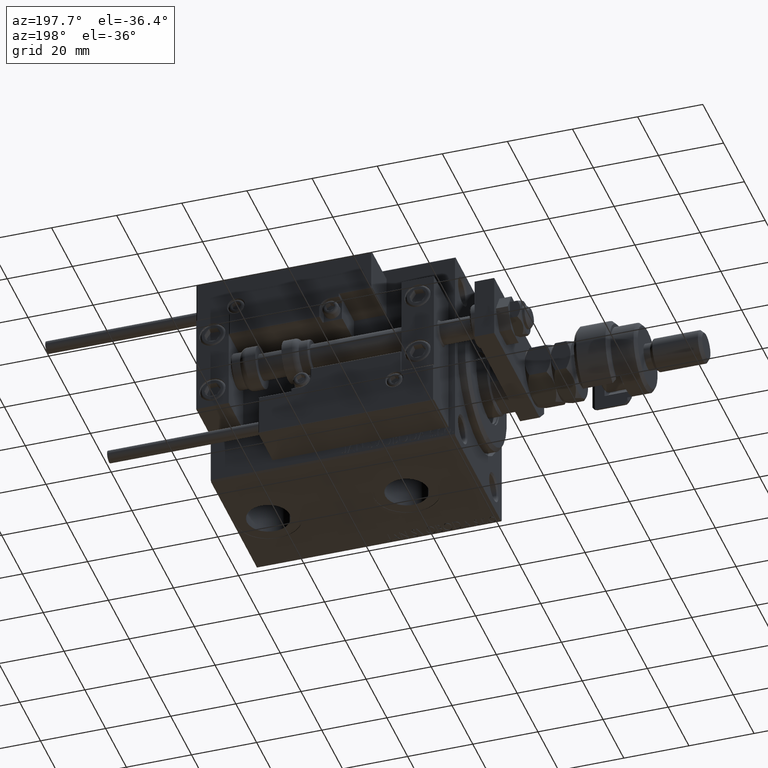
[diagram: clean part render]
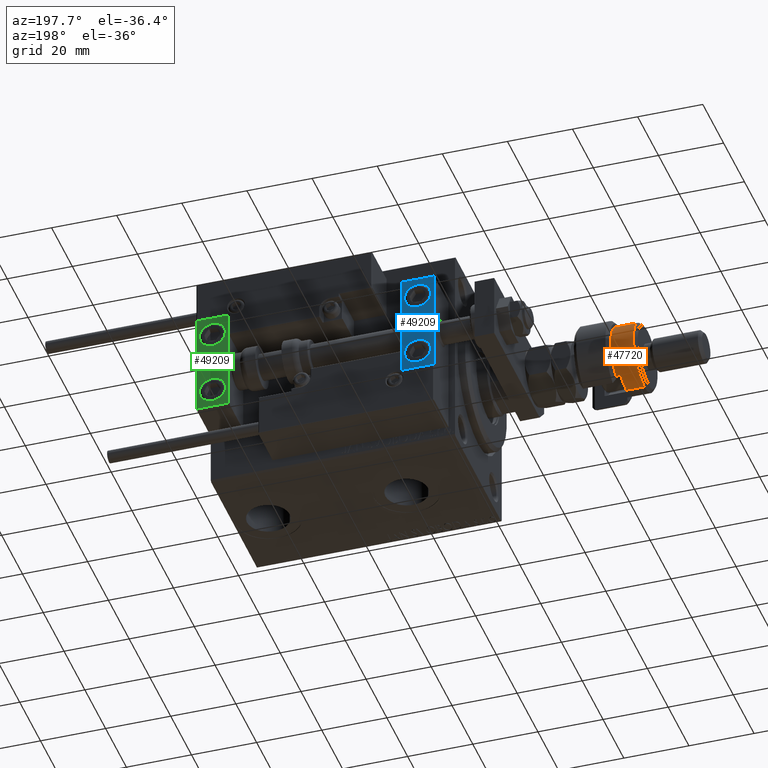
[diagram: same view with three faces highlighted in distinct colors, each labeled with its STEP entity id]
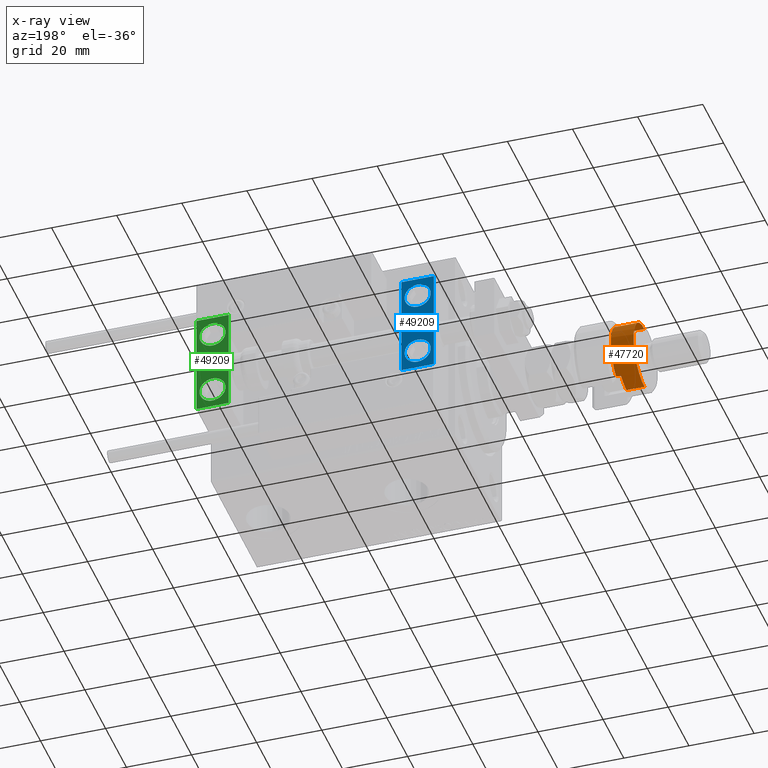
[diagram: x-ray of the same camera — body ghosted, the three highlighted faces saturated]
A machine part, auxiliary view with three faces highlighted in distinct colors.
The next image is the same camera in x-ray (body ghosted, the three faces saturated) — at least one of them is partly hidden behind the body in this view.
Their STEP definitions:

[orange] entity #47720 — the highlighted cylindrical surface (edge-blend (fillet) strip) has radius 10.5 mm, axis along (1, 0, -0).
#502 = EDGE_CURVE ( 'NONE', #50437, #23259, #728, .T. ) ;
#728 = LINE ( 'NONE', #17784, #47205 ) ;
#1740 = CARTESIAN_POINT ( 'NONE',  ( 10.50000000000000000, 1.285879139104720831E-15, 17.99999999999999645 ) ) ;
#2994 = CIRCLE ( 'NONE', #34292, 10.50000000000000000 ) ;
#3178 = CARTESIAN_POINT ( 'NONE',  ( 0.000000000000000000, 0.000000000000000000, 12.50000000000000000 ) ) ;
#4000 = CARTESIAN_POINT ( 'NONE',  ( -10.50000000000000000, 0.000000000000000000, 12.50000000000000000 ) ) ;
#6777 = DIRECTION ( 'NONE',  ( 0.000000000000000000, 0.000000000000000000, 1.000000000000000000 ) ) ;
#7370 = CYLINDRICAL_SURFACE ( 'NONE', #21710, 10.50000000000000000 ) ;
#7630 = VECTOR ( 'NONE', #8538, 1000.000000000000000 ) ;
#8538 = DIRECTION ( 'NONE',  ( -0.000000000000000000, -0.000000000000000000, -1.000000000000000000 ) ) ;
#10704 = DIRECTION ( 'NONE',  ( 1.000000000000000000, 0.000000000000000000, 0.000000000000000000 ) ) ;
#10874 = CIRCLE ( 'NONE', #26966, 10.50000000000000000 ) ;
#11579 = DIRECTION ( 'NONE',  ( -1.000000000000000000, 0.000000000000000000, 0.000000000000000000 ) ) ;
#13460 = EDGE_CURVE ( 'NONE', #44682, #50437, #10874, .T. ) ;
#14233 = ORIENTED_EDGE ( 'NONE', *, *, #18187, .F. ) ;
#14357 = LINE ( 'NONE', #53558, #51126 ) ;
#14726 = EDGE_CURVE ( 'NONE', #30383, #46909, #14357, .T. ) ;
#16963 = AXIS2_PLACEMENT_3D ( 'NONE', #50086, #37189, #46435 ) ;
#17150 = VERTEX_POINT ( 'NONE', #1740 ) ;
#17784 = CARTESIAN_POINT ( 'NONE',  ( -8.944271909999159220, 5.500000000000000000, 19.00000000000000000 ) ) ;
#18187 = EDGE_CURVE ( 'NONE', #46909, #23259, #2994, .T. ) ;
#19503 = ORIENTED_EDGE ( 'NONE', *, *, #24477, .T. ) ;
#19682 = CIRCLE ( 'NONE', #16963, 10.50000000000000000 ) ;
#20452 = ORIENTED_EDGE ( 'NONE', *, *, #38168, .T. ) ;
#21532 = ORIENTED_EDGE ( 'NONE', *, *, #14726, .F. ) ;
#21710 = AXIS2_PLACEMENT_3D ( 'NONE', #40971, #32853, #33143 ) ;
#22484 = DIRECTION ( 'NONE',  ( -0.000000000000000000, -0.000000000000000000, -1.000000000000000000 ) ) ;
#22797 = EDGE_LOOP ( 'NONE', ( #20452, #19503, #28128, #39476, #14233, #21532 ) ) ;
#23259 = VERTEX_POINT ( 'NONE', #50329 ) ;
#23581 = CARTESIAN_POINT ( 'NONE',  ( 0.000000000000000000, 0.000000000000000000, 11.00000000000000000 ) ) ;
#23819 = CARTESIAN_POINT ( 'NONE',  ( -10.50000000000000000, 0.000000000000000000, 17.99999999999999645 ) ) ;
#24323 = CARTESIAN_POINT ( 'NONE',  ( -8.944271909999159220, 5.500000000000000000, 11.00000000000000000 ) ) ;
#24477 = EDGE_CURVE ( 'NONE', #17150, #44682, #33742, .T. ) ;
#26966 = AXIS2_PLACEMENT_3D ( 'NONE', #23581, #6777, #10704 ) ;
#28128 = ORIENTED_EDGE ( 'NONE', *, *, #13460, .T. ) ;
#28403 = DIRECTION ( 'NONE',  ( 0.000000000000000000, 0.000000000000000000, -1.000000000000000000 ) ) ;
#30383 = VERTEX_POINT ( 'NONE', #23819 ) ;
#32853 = DIRECTION ( 'NONE',  ( -0.000000000000000000, -0.000000000000000000, -1.000000000000000000 ) ) ;
#33143 = DIRECTION ( 'NONE',  ( -1.000000000000000000, 0.000000000000000000, 0.000000000000000000 ) ) ;
#33742 = LINE ( 'NONE', #55033, #7630 ) ;
#34292 = AXIS2_PLACEMENT_3D ( 'NONE', #3178, #28403, #11579 ) ;
#34879 = DIRECTION ( 'NONE',  ( 0.000000000000000000, 0.000000000000000000, 1.000000000000000000 ) ) ;
#37189 = DIRECTION ( 'NONE',  ( 0.000000000000000000, 0.000000000000000000, -1.000000000000000000 ) ) ;
#38168 = EDGE_CURVE ( 'NONE', #30383, #17150, #19682, .T. ) ;
#39476 = ORIENTED_EDGE ( 'NONE', *, *, #502, .T. ) ;
#40971 = CARTESIAN_POINT ( 'NONE',  ( 0.000000000000000000, 0.000000000000000000, 19.00000000000000000 ) ) ;
#44682 = VERTEX_POINT ( 'NONE', #49687 ) ;
#46435 = DIRECTION ( 'NONE',  ( 1.000000000000000000, 0.000000000000000000, 0.000000000000000000 ) ) ;
#46909 = VERTEX_POINT ( 'NONE', #4000 ) ;
#47205 = VECTOR ( 'NONE', #34879, 1000.000000000000000 ) ;
#47720 = ADVANCED_FACE ( 'NONE', ( #49659 ), #7370, .T. ) ;
#49659 = FACE_OUTER_BOUND ( 'NONE', #22797, .T. ) ;
#49687 = CARTESIAN_POINT ( 'NONE',  ( 10.50000000000000000, 1.285879139104720831E-15, 11.00000000000000000 ) ) ;
#50086 = CARTESIAN_POINT ( 'NONE',  ( 0.000000000000000000, 0.000000000000000000, 17.99999999999999645 ) ) ;
#50329 = CARTESIAN_POINT ( 'NONE',  ( -8.944271909999159220, 5.500000000000000000, 12.50000000000000000 ) ) ;
#50437 = VERTEX_POINT ( 'NONE', #24323 ) ;
#51126 = VECTOR ( 'NONE', #22484, 1000.000000000000000 ) ;
#53558 = CARTESIAN_POINT ( 'NONE',  ( -10.50000000000000000, 0.000000000000000000, 19.00000000000000000 ) ) ;
#55033 = CARTESIAN_POINT ( 'NONE',  ( 10.50000000000000000, 1.285879139104720831E-15, 19.00000000000000000 ) ) ;

[blue] entity #49209 — the highlighted planar face has unit normal (-0, 1, 0).
#2221 = DIRECTION ( 'NONE',  ( 0.000000000000000000, 0.000000000000000000, -1.000000000000000000 ) ) ;
#4498 = VECTOR ( 'NONE', #2221, 1000.000000000000000 ) ;
#4661 = ORIENTED_EDGE ( 'NONE', *, *, #42473, .T. ) ;
#5386 = ORIENTED_EDGE ( 'NONE', *, *, #7133, .F. ) ;
#5917 = PLANE ( 'NONE',  #50433 ) ;
#6867 = DIRECTION ( 'NONE',  ( 0.000000000000000000, 0.000000000000000000, 1.000000000000000000 ) ) ;
#7133 = EDGE_CURVE ( 'NONE', #29516, #35239, #35756, .T. ) ;
#8421 = CARTESIAN_POINT ( 'NONE',  ( 0.000000000000000000, 7.000000000000000000, 15.99999999999999289 ) ) ;
#8787 = ORIENTED_EDGE ( 'NONE', *, *, #38686, .T. ) ;
#8868 = VERTEX_POINT ( 'NONE', #8421 ) ;
#9865 = AXIS2_PLACEMENT_3D ( 'NONE', #36239, #19142, #18320 ) ;
#10603 = DIRECTION ( 'NONE',  ( 0.000000000000000000, 0.000000000000000000, 1.000000000000000000 ) ) ;
#11598 = AXIS2_PLACEMENT_3D ( 'NONE', #52898, #36088, #10603 ) ;
#11635 = VERTEX_POINT ( 'NONE', #30745 ) ;
#11703 = CARTESIAN_POINT ( 'NONE',  ( 5.000000000000000888, 7.000000000000000888, 14.00000000000000178 ) ) ;
#12841 = EDGE_CURVE ( 'NONE', #48284, #49816, #32344, .T. ) ;
#13644 = VECTOR ( 'NONE', #23616, 1000.000000000000000 ) ;
#14822 = DIRECTION ( 'NONE',  ( 0.000000000000000000, 0.000000000000000000, -1.000000000000000000 ) ) ;
#15842 = EDGE_CURVE ( 'NONE', #27072, #11635, #35950, .T. ) ;
#18320 = DIRECTION ( 'NONE',  ( 0.000000000000000000, 0.000000000000000000, 1.000000000000000000 ) ) ;
#18799 = FACE_BOUND ( 'NONE', #31269, .T. ) ;
#19142 = DIRECTION ( 'NONE',  ( 1.848892746611746419E-32, -1.000000000000000000, 6.616381192988677562E-17 ) ) ;
#22042 = AXIS2_PLACEMENT_3D ( 'NONE', #36276, #49705, #6867 ) ;
#23616 = DIRECTION ( 'NONE',  ( -1.000000000000000000, -0.000000000000000000, -0.000000000000000000 ) ) ;
#23794 = DIRECTION ( 'NONE',  ( 1.848892746611746419E-32, -1.000000000000000000, 6.616381192988677562E-17 ) ) ;
#24052 = CARTESIAN_POINT ( 'NONE',  ( 10.00000000000000000, 7.000000000000000000, 15.99999999999999289 ) ) ;
#24184 = CARTESIAN_POINT ( 'NONE',  ( 5.000000000000001776, 7.000000000000000888, 6.000000000000000888 ) ) ;
#27072 = VERTEX_POINT ( 'NONE', #47295 ) ;
#27468 = EDGE_CURVE ( 'NONE', #35239, #29516, #42634, .T. ) ;
#29516 = VERTEX_POINT ( 'NONE', #54051 ) ;
#30745 = CARTESIAN_POINT ( 'NONE',  ( 0.000000000000000000, 7.000000000000000000, -16.00000000000000711 ) ) ;
#31095 = CARTESIAN_POINT ( 'NONE',  ( 0.000000000000000000, 7.000000000000000000, 15.99999999999999289 ) ) ;
#31113 = EDGE_CURVE ( 'NONE', #8868, #11635, #52934, .T. ) ;
#31269 = EDGE_LOOP ( 'NONE', ( #5386, #48820 ) ) ;
#31704 = FACE_BOUND ( 'NONE', #51351, .T. ) ;
#31934 = CARTESIAN_POINT ( 'NONE',  ( 5.000000000000000888, 7.000000000000000888, 10.00000000000000178 ) ) ;
#32106 = ORIENTED_EDGE ( 'NONE', *, *, #15842, .T. ) ;
#32344 = CIRCLE ( 'NONE', #44858, 4.000000000000000000 ) ;
#32454 = LINE ( 'NONE', #24052, #4498 ) ;
#35239 = VERTEX_POINT ( 'NONE', #46049 ) ;
#35756 = CIRCLE ( 'NONE', #11598, 4.000000000000000888 ) ;
#35950 = LINE ( 'NONE', #49648, #13644 ) ;
#36088 = DIRECTION ( 'NONE',  ( 0.000000000000000000, 1.000000000000000000, -6.065466699219605527E-17 ) ) ;
#36239 = CARTESIAN_POINT ( 'NONE',  ( 5.000000000000000888, 7.000000000000000888, 10.00000000000000178 ) ) ;
#36276 = CARTESIAN_POINT ( 'NONE',  ( 5.000000000000000888, 6.999999999999999112, -10.00000000000000178 ) ) ;
#37339 = ORIENTED_EDGE ( 'NONE', *, *, #31113, .F. ) ;
#37526 = VERTEX_POINT ( 'NONE', #41316 ) ;
#38686 = EDGE_CURVE ( 'NONE', #49816, #48284, #50994, .T. ) ;
#39661 = VECTOR ( 'NONE', #44144, 1000.000000000000000 ) ;
#40828 = VECTOR ( 'NONE', #14822, 1000.000000000000000 ) ;
#40854 = DIRECTION ( 'NONE',  ( 0.000000000000000000, 0.000000000000000000, 1.000000000000000000 ) ) ;
#41180 = DIRECTION ( 'NONE',  ( 0.000000000000000000, -0.000000000000000000, 1.000000000000000000 ) ) ;
#41316 = CARTESIAN_POINT ( 'NONE',  ( 10.00000000000000000, 7.000000000000000000, 15.99999999999999289 ) ) ;
#42473 = EDGE_CURVE ( 'NONE', #37526, #27072, #32454, .T. ) ;
#42634 = CIRCLE ( 'NONE', #22042, 4.000000000000000888 ) ;
#44144 = DIRECTION ( 'NONE',  ( -1.000000000000000000, -0.000000000000000000, -0.000000000000000000 ) ) ;
#44845 = CARTESIAN_POINT ( 'NONE',  ( 10.00000000000000000, 7.000000000000000000, 15.99999999999999289 ) ) ;
#44858 = AXIS2_PLACEMENT_3D ( 'NONE', #31934, #23794, #40854 ) ;
#46049 = CARTESIAN_POINT ( 'NONE',  ( 5.000000000000001776, 6.999999999999999112, -14.00000000000000178 ) ) ;
#47295 = CARTESIAN_POINT ( 'NONE',  ( 10.00000000000000000, 7.000000000000000000, -16.00000000000000711 ) ) ;
#47786 = LINE ( 'NONE', #48623, #39661 ) ;
#48284 = VERTEX_POINT ( 'NONE', #11703 ) ;
#48421 = EDGE_CURVE ( 'NONE', #37526, #8868, #47786, .T. ) ;
#48531 = ORIENTED_EDGE ( 'NONE', *, *, #48421, .F. ) ;
#48623 = CARTESIAN_POINT ( 'NONE',  ( 10.00000000000000000, 7.000000000000000000, 15.99999999999999289 ) ) ;
#48820 = ORIENTED_EDGE ( 'NONE', *, *, #27468, .F. ) ;
#49209 = ADVANCED_FACE ( 'NONE', ( #54077, #18799, #31704 ), #5917, .T. ) ;
#49313 = DIRECTION ( 'NONE',  ( -0.000000000000000000, 1.000000000000000000, 0.000000000000000000 ) ) ;
#49648 = CARTESIAN_POINT ( 'NONE',  ( 10.00000000000000000, 7.000000000000000000, -16.00000000000000711 ) ) ;
#49705 = DIRECTION ( 'NONE',  ( 0.000000000000000000, 1.000000000000000000, -6.065466699219605527E-17 ) ) ;
#49816 = VERTEX_POINT ( 'NONE', #24184 ) ;
#50164 = ORIENTED_EDGE ( 'NONE', *, *, #12841, .T. ) ;
#50433 = AXIS2_PLACEMENT_3D ( 'NONE', #44845, #49313, #41180 ) ;
#50903 = EDGE_LOOP ( 'NONE', ( #37339, #48531, #4661, #32106 ) ) ;
#50994 = CIRCLE ( 'NONE', #9865, 4.000000000000000000 ) ;
#51351 = EDGE_LOOP ( 'NONE', ( #50164, #8787 ) ) ;
#52898 = CARTESIAN_POINT ( 'NONE',  ( 5.000000000000000888, 6.999999999999999112, -10.00000000000000178 ) ) ;
#52934 = LINE ( 'NONE', #31095, #40828 ) ;
#54051 = CARTESIAN_POINT ( 'NONE',  ( 5.000000000000000888, 6.999999999999999112, -6.000000000000000888 ) ) ;
#54077 = FACE_OUTER_BOUND ( 'NONE', #50903, .T. ) ;

[green] entity #49209 — the highlighted planar face has unit normal (0, 1, 0).
#2221 = DIRECTION ( 'NONE',  ( 0.000000000000000000, 0.000000000000000000, -1.000000000000000000 ) ) ;
#4498 = VECTOR ( 'NONE', #2221, 1000.000000000000000 ) ;
#4661 = ORIENTED_EDGE ( 'NONE', *, *, #42473, .T. ) ;
#5386 = ORIENTED_EDGE ( 'NONE', *, *, #7133, .F. ) ;
#5917 = PLANE ( 'NONE',  #50433 ) ;
#6867 = DIRECTION ( 'NONE',  ( 0.000000000000000000, 0.000000000000000000, 1.000000000000000000 ) ) ;
#7133 = EDGE_CURVE ( 'NONE', #29516, #35239, #35756, .T. ) ;
#8421 = CARTESIAN_POINT ( 'NONE',  ( 0.000000000000000000, 7.000000000000000000, 15.99999999999999289 ) ) ;
#8787 = ORIENTED_EDGE ( 'NONE', *, *, #38686, .T. ) ;
#8868 = VERTEX_POINT ( 'NONE', #8421 ) ;
#9865 = AXIS2_PLACEMENT_3D ( 'NONE', #36239, #19142, #18320 ) ;
#10603 = DIRECTION ( 'NONE',  ( 0.000000000000000000, 0.000000000000000000, 1.000000000000000000 ) ) ;
#11598 = AXIS2_PLACEMENT_3D ( 'NONE', #52898, #36088, #10603 ) ;
#11635 = VERTEX_POINT ( 'NONE', #30745 ) ;
#11703 = CARTESIAN_POINT ( 'NONE',  ( 5.000000000000000888, 7.000000000000000888, 14.00000000000000178 ) ) ;
#12841 = EDGE_CURVE ( 'NONE', #48284, #49816, #32344, .T. ) ;
#13644 = VECTOR ( 'NONE', #23616, 1000.000000000000000 ) ;
#14822 = DIRECTION ( 'NONE',  ( 0.000000000000000000, 0.000000000000000000, -1.000000000000000000 ) ) ;
#15842 = EDGE_CURVE ( 'NONE', #27072, #11635, #35950, .T. ) ;
#18320 = DIRECTION ( 'NONE',  ( 0.000000000000000000, 0.000000000000000000, 1.000000000000000000 ) ) ;
#18799 = FACE_BOUND ( 'NONE', #31269, .T. ) ;
#19142 = DIRECTION ( 'NONE',  ( 1.848892746611746419E-32, -1.000000000000000000, 6.616381192988677562E-17 ) ) ;
#22042 = AXIS2_PLACEMENT_3D ( 'NONE', #36276, #49705, #6867 ) ;
#23616 = DIRECTION ( 'NONE',  ( -1.000000000000000000, -0.000000000000000000, -0.000000000000000000 ) ) ;
#23794 = DIRECTION ( 'NONE',  ( 1.848892746611746419E-32, -1.000000000000000000, 6.616381192988677562E-17 ) ) ;
#24052 = CARTESIAN_POINT ( 'NONE',  ( 10.00000000000000000, 7.000000000000000000, 15.99999999999999289 ) ) ;
#24184 = CARTESIAN_POINT ( 'NONE',  ( 5.000000000000001776, 7.000000000000000888, 6.000000000000000888 ) ) ;
#27072 = VERTEX_POINT ( 'NONE', #47295 ) ;
#27468 = EDGE_CURVE ( 'NONE', #35239, #29516, #42634, .T. ) ;
#29516 = VERTEX_POINT ( 'NONE', #54051 ) ;
#30745 = CARTESIAN_POINT ( 'NONE',  ( 0.000000000000000000, 7.000000000000000000, -16.00000000000000711 ) ) ;
#31095 = CARTESIAN_POINT ( 'NONE',  ( 0.000000000000000000, 7.000000000000000000, 15.99999999999999289 ) ) ;
#31113 = EDGE_CURVE ( 'NONE', #8868, #11635, #52934, .T. ) ;
#31269 = EDGE_LOOP ( 'NONE', ( #5386, #48820 ) ) ;
#31704 = FACE_BOUND ( 'NONE', #51351, .T. ) ;
#31934 = CARTESIAN_POINT ( 'NONE',  ( 5.000000000000000888, 7.000000000000000888, 10.00000000000000178 ) ) ;
#32106 = ORIENTED_EDGE ( 'NONE', *, *, #15842, .T. ) ;
#32344 = CIRCLE ( 'NONE', #44858, 4.000000000000000000 ) ;
#32454 = LINE ( 'NONE', #24052, #4498 ) ;
#35239 = VERTEX_POINT ( 'NONE', #46049 ) ;
#35756 = CIRCLE ( 'NONE', #11598, 4.000000000000000888 ) ;
#35950 = LINE ( 'NONE', #49648, #13644 ) ;
#36088 = DIRECTION ( 'NONE',  ( 0.000000000000000000, 1.000000000000000000, -6.065466699219605527E-17 ) ) ;
#36239 = CARTESIAN_POINT ( 'NONE',  ( 5.000000000000000888, 7.000000000000000888, 10.00000000000000178 ) ) ;
#36276 = CARTESIAN_POINT ( 'NONE',  ( 5.000000000000000888, 6.999999999999999112, -10.00000000000000178 ) ) ;
#37339 = ORIENTED_EDGE ( 'NONE', *, *, #31113, .F. ) ;
#37526 = VERTEX_POINT ( 'NONE', #41316 ) ;
#38686 = EDGE_CURVE ( 'NONE', #49816, #48284, #50994, .T. ) ;
#39661 = VECTOR ( 'NONE', #44144, 1000.000000000000000 ) ;
#40828 = VECTOR ( 'NONE', #14822, 1000.000000000000000 ) ;
#40854 = DIRECTION ( 'NONE',  ( 0.000000000000000000, 0.000000000000000000, 1.000000000000000000 ) ) ;
#41180 = DIRECTION ( 'NONE',  ( 0.000000000000000000, -0.000000000000000000, 1.000000000000000000 ) ) ;
#41316 = CARTESIAN_POINT ( 'NONE',  ( 10.00000000000000000, 7.000000000000000000, 15.99999999999999289 ) ) ;
#42473 = EDGE_CURVE ( 'NONE', #37526, #27072, #32454, .T. ) ;
#42634 = CIRCLE ( 'NONE', #22042, 4.000000000000000888 ) ;
#44144 = DIRECTION ( 'NONE',  ( -1.000000000000000000, -0.000000000000000000, -0.000000000000000000 ) ) ;
#44845 = CARTESIAN_POINT ( 'NONE',  ( 10.00000000000000000, 7.000000000000000000, 15.99999999999999289 ) ) ;
#44858 = AXIS2_PLACEMENT_3D ( 'NONE', #31934, #23794, #40854 ) ;
#46049 = CARTESIAN_POINT ( 'NONE',  ( 5.000000000000001776, 6.999999999999999112, -14.00000000000000178 ) ) ;
#47295 = CARTESIAN_POINT ( 'NONE',  ( 10.00000000000000000, 7.000000000000000000, -16.00000000000000711 ) ) ;
#47786 = LINE ( 'NONE', #48623, #39661 ) ;
#48284 = VERTEX_POINT ( 'NONE', #11703 ) ;
#48421 = EDGE_CURVE ( 'NONE', #37526, #8868, #47786, .T. ) ;
#48531 = ORIENTED_EDGE ( 'NONE', *, *, #48421, .F. ) ;
#48623 = CARTESIAN_POINT ( 'NONE',  ( 10.00000000000000000, 7.000000000000000000, 15.99999999999999289 ) ) ;
#48820 = ORIENTED_EDGE ( 'NONE', *, *, #27468, .F. ) ;
#49209 = ADVANCED_FACE ( 'NONE', ( #54077, #18799, #31704 ), #5917, .T. ) ;
#49313 = DIRECTION ( 'NONE',  ( -0.000000000000000000, 1.000000000000000000, 0.000000000000000000 ) ) ;
#49648 = CARTESIAN_POINT ( 'NONE',  ( 10.00000000000000000, 7.000000000000000000, -16.00000000000000711 ) ) ;
#49705 = DIRECTION ( 'NONE',  ( 0.000000000000000000, 1.000000000000000000, -6.065466699219605527E-17 ) ) ;
#49816 = VERTEX_POINT ( 'NONE', #24184 ) ;
#50164 = ORIENTED_EDGE ( 'NONE', *, *, #12841, .T. ) ;
#50433 = AXIS2_PLACEMENT_3D ( 'NONE', #44845, #49313, #41180 ) ;
#50903 = EDGE_LOOP ( 'NONE', ( #37339, #48531, #4661, #32106 ) ) ;
#50994 = CIRCLE ( 'NONE', #9865, 4.000000000000000000 ) ;
#51351 = EDGE_LOOP ( 'NONE', ( #50164, #8787 ) ) ;
#52898 = CARTESIAN_POINT ( 'NONE',  ( 5.000000000000000888, 6.999999999999999112, -10.00000000000000178 ) ) ;
#52934 = LINE ( 'NONE', #31095, #40828 ) ;
#54051 = CARTESIAN_POINT ( 'NONE',  ( 5.000000000000000888, 6.999999999999999112, -6.000000000000000888 ) ) ;
#54077 = FACE_OUTER_BOUND ( 'NONE', #50903, .T. ) ;